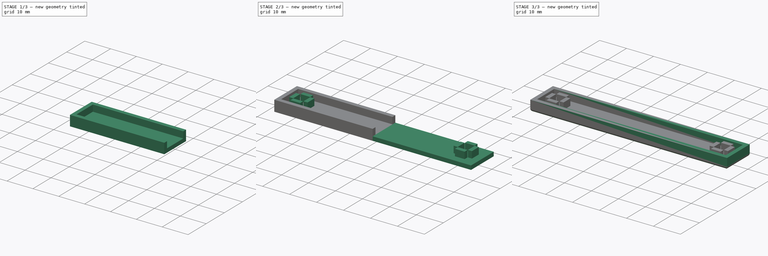
[diagram: build sequence overview — one tinted view per stage of 3, left to right]
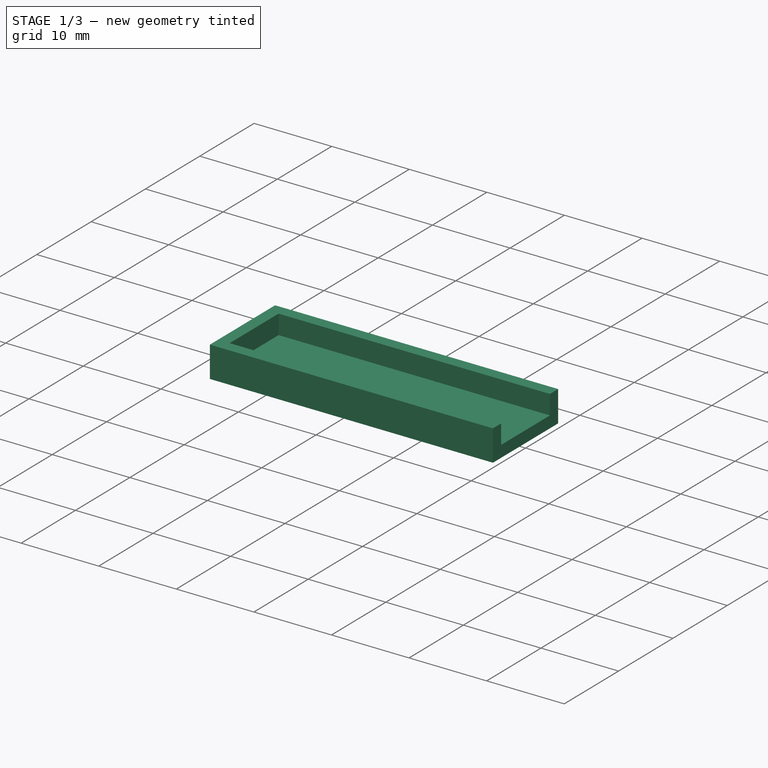
[diagram: stage 1 of 3 — iso view after this stage's code; geometry added in this stage tinted green]
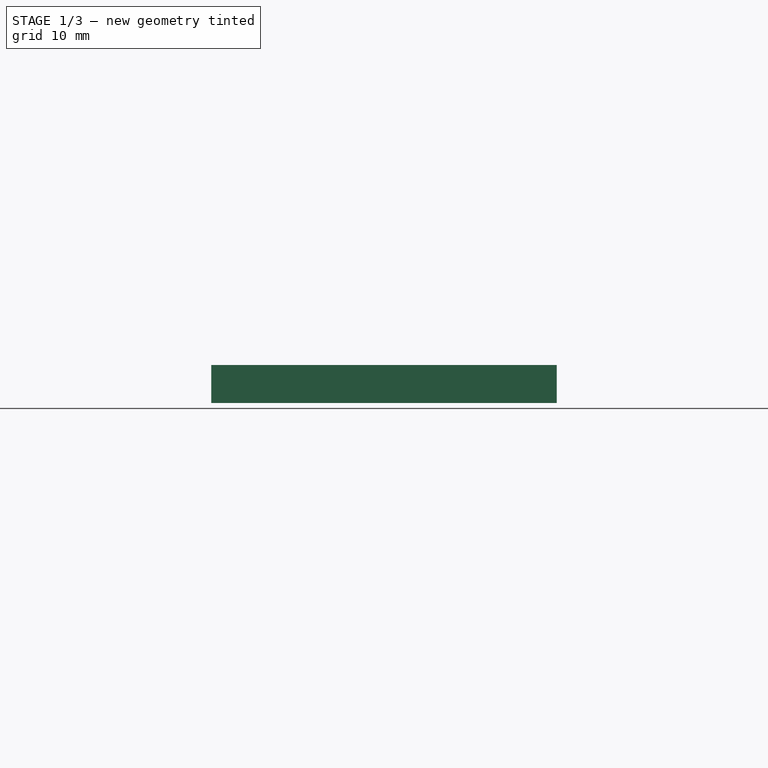
[diagram: stage 1 of 3 — front view after this stage's code; geometry added in this stage tinted green]
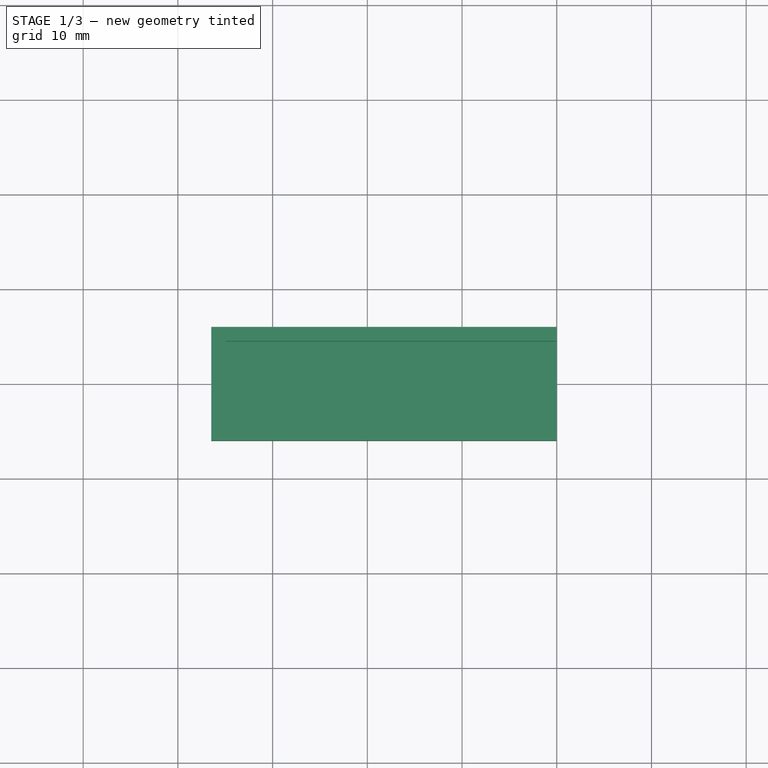
[diagram: stage 1 of 3 — top view after this stage's code; geometry added in this stage tinted green]
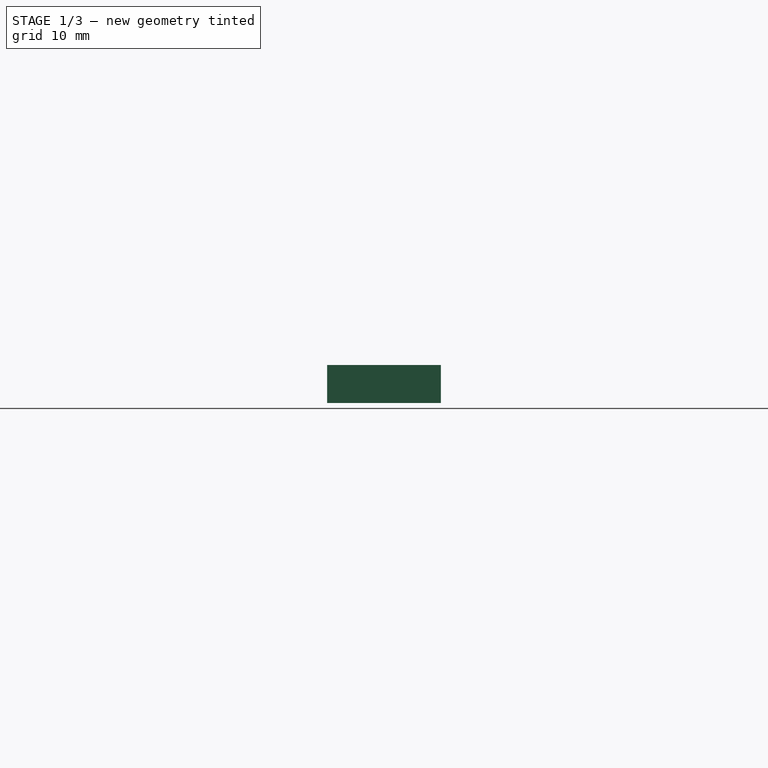
[diagram: stage 1 of 3 — right view after this stage's code; geometry added in this stage tinted green]
FCSTD DOCUMENT  (FreeCAD 0.19R24291 (Git))
Label: key-space
License: All rights reserved
LicenseURL: http://en.wikipedia.org/wiki/All_rights_reserved
objects: Sketcher::SketchObject×3, PartDesign::Pad×3, PartDesign::Mirrored×3, Spreadsheet::Sheet×1, PartDesign::Fillet×1, PartDesign::Body×1
note: 15 computed .brp shape members not serialized (recipe doc carries the construction recipe); baked Part::Feature solids carry a one-line shape summary decoded from their .brp

FEATURE [Spreadsheet::Sheet] Spreadsheet  label="Masse"
  cells = A2=Tastenabstand; B2(tab)==60.96mm; A3=Tastenknuppel; B3(auf)==3.6mm; A4=Höhe Aufnahme; B4(aufh)==4mm; A5=Tastenbreite; B5(keyl)==12mm; A6=Tastenhöhe; B6(keyh)==4mm; A7=Wandstärke1; B7(w1)==1.5mm; A8=Wandstärke2; B8(w2)==1.5mm; A9=Tolleranz; B9(Tol)==0.1mm
FEATURE [Sketcher::SketchObject] Sketch
  FullyConstrained = true
  MapMode = 5
  Support = -> [XY_Plane]
  expr: Constraints[8] = Spreadsheet.keyl
  expr: Constraints[9] = (Spreadsheet.tab + Spreadsheet.keyl) / 2
  sketch-geometry (4):
    g0: LineSegment StartX=-36.48 StartY=6 StartZ=0 EndX=0 EndY=6 EndZ=0
    g1: LineSegment StartX=0 StartY=6 StartZ=0 EndX=0 EndY=-6 EndZ=0
    g2: LineSegment StartX=0 StartY=-6 StartZ=0 EndX=-36.48 EndY=-6 EndZ=0
    g3: LineSegment StartX=-36.48 StartY=-6 StartZ=0 EndX=-36.48 EndY=6 EndZ=0
  constraints (11):
    c: Coincident(g0,g1)
    c: Coincident(g1,g2)
    c: Coincident(g2,g3)
    c: Coincident(g3,g0)
    c: Horizontal(g0)
    c: Horizontal(g2)
    c: Vertical(g1)
    c: Vertical(g3)
    c: DistanceY(g3,g3) = 12
    c: DistanceX(g0,g0) = 36.48
    c: Symmetric(g1,g0,g-1)
FEATURE [PartDesign::Pad] Pad
  Direction = (1,1,1)
  Length = 1.5
  Length2 = 100
  Profile = -> Sketch
  Type = 0
  expr: Length = Spreadsheet.w2
FEATURE [Sketcher::SketchObject] Sketch001
  AttachmentOffset = pos=(0,0,1.5) rot=(0,0,1;0rad)
  FullyConstrained = true
  MapMode = 5
  Placement = pos=(0,0,1.5) rot=(0,0,1;0rad)
  Support = -> [XY_Plane]
  expr: Constraints[14] = Spreadsheet.w2
  expr: Constraints[15] = (Spreadsheet.tab + Spreadsheet.keyl) / 2
  expr: Constraints[12] = Spreadsheet.keyl
  expr: Constraints[13] = Spreadsheet.keyl - 2 * Spreadsheet.w2
  expr: .AttachmentOffset.Base.z = Spreadsheet.w2
  sketch-geometry (8):
    g0: LineSegment StartX=-36.48 StartY=6 StartZ=0 EndX=0 EndY=6 EndZ=0
    g1: LineSegment StartX=0 StartY=-6 StartZ=0 EndX=-36.48 EndY=-6 EndZ=0
    g2: LineSegment StartX=-36.48 StartY=-6 StartZ=0 EndX=-36.48 EndY=6 EndZ=0
    g3: LineSegment StartX=-34.98 StartY=4.5 StartZ=0 EndX=0 EndY=4.5 EndZ=0
    g4: LineSegment StartX=0 StartY=-4.5 StartZ=0 EndX=-34.98 EndY=-4.5 EndZ=0
    g5: LineSegment StartX=-34.98 StartY=-4.5 StartZ=0 EndX=-34.98 EndY=4.5 EndZ=0
    g6: LineSegment StartX=0 StartY=4.5 StartZ=0 EndX=0 EndY=6 EndZ=0
    g7: LineSegment StartX=0 StartY=-6 StartZ=0 EndX=0 EndY=-4.5 EndZ=0
  constraints (22):
    c: Coincident(g1,g2)
    c: Coincident(g2,g0)
    c: Horizontal(g0)
    c: Horizontal(g1)
    c: Vertical(g2)
    c: Coincident(g4,g5)
    c: Coincident(g5,g3)
    c: Horizontal(g3)
    c: Horizontal(g4)
    c: Vertical(g5)
    c: Symmetric(g1,g0,g-1)
    c: Symmetric(g4,g3,g-1)
    c: DistanceY(g2,g2) = 12
    c: DistanceY(g5,g5) = 9
    c: DistanceX(g0,g3) = 1.5
    c: DistanceX(g0,g0) = 36.48
    c: Coincident(g6,g3)
    c: Coincident(g6,g0)
    c: Vertical(g6)
    c: Coincident(g7,g1)
    c: Coincident(g7,g4)
    c: PointOnObject(g4,g-2)
FEATURE [PartDesign::Pad] Pad001
  BaseFeature = -> Pad
  Direction = (1,1,1)
  Length = 2.5
  Length2 = 100
  Profile = -> Sketch001
  Refine = true
  Type = 0
  expr: Length = Spreadsheet.keyh - Spreadsheet.w2
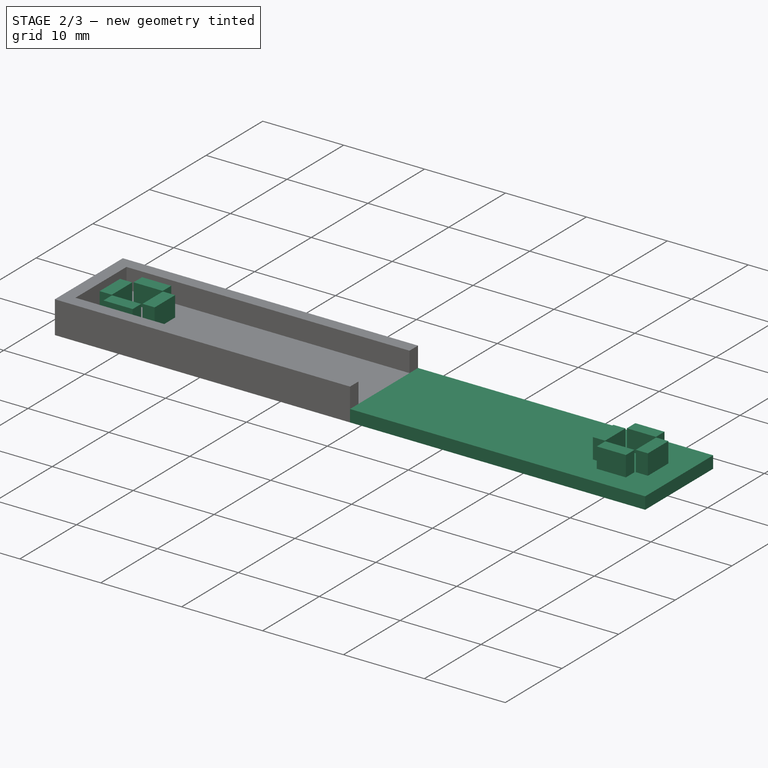
[diagram: stage 2 of 3 — iso view after this stage's code; geometry added in this stage tinted green]
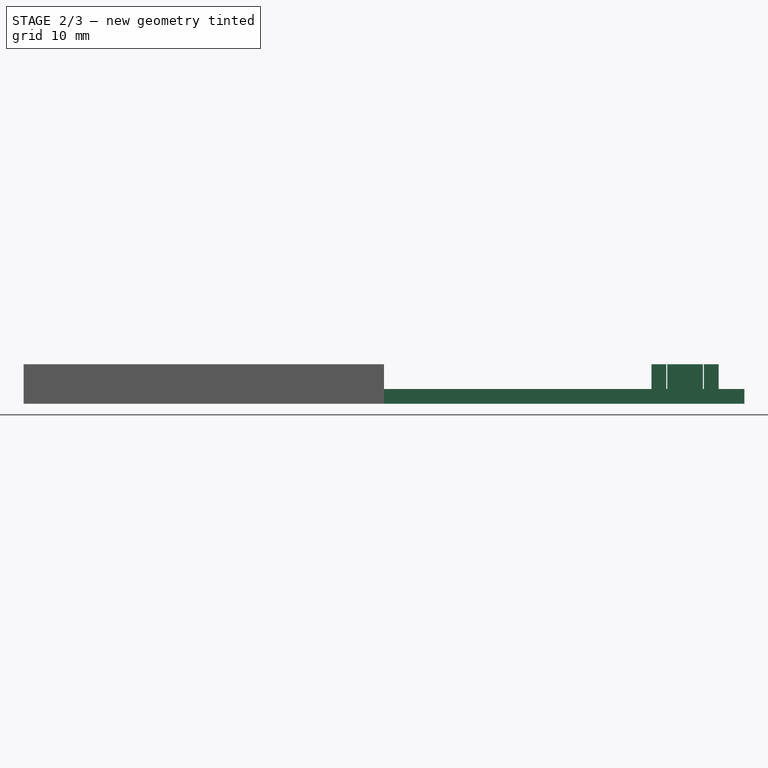
[diagram: stage 2 of 3 — front view after this stage's code; geometry added in this stage tinted green]
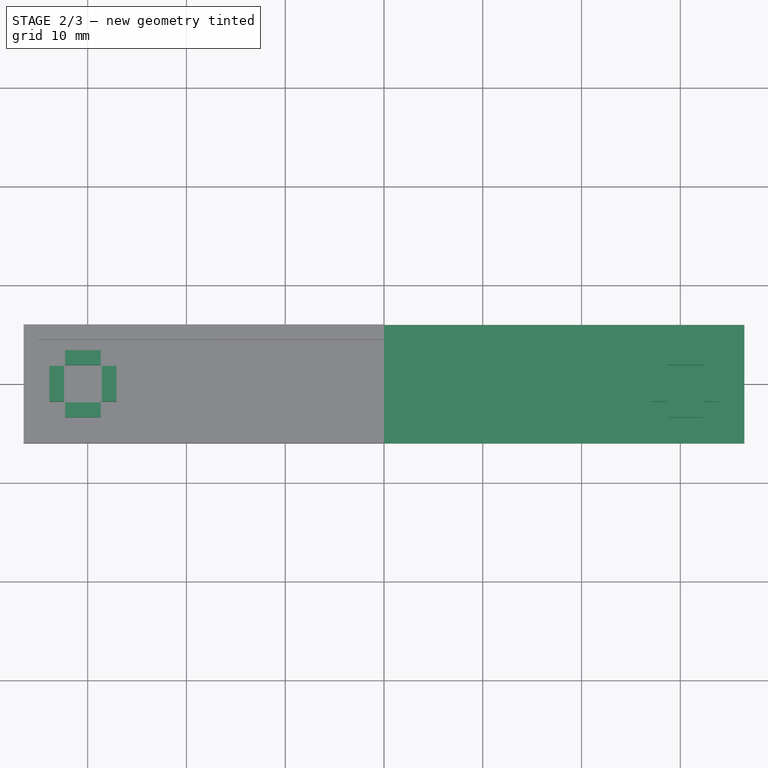
[diagram: stage 2 of 3 — top view after this stage's code; geometry added in this stage tinted green]
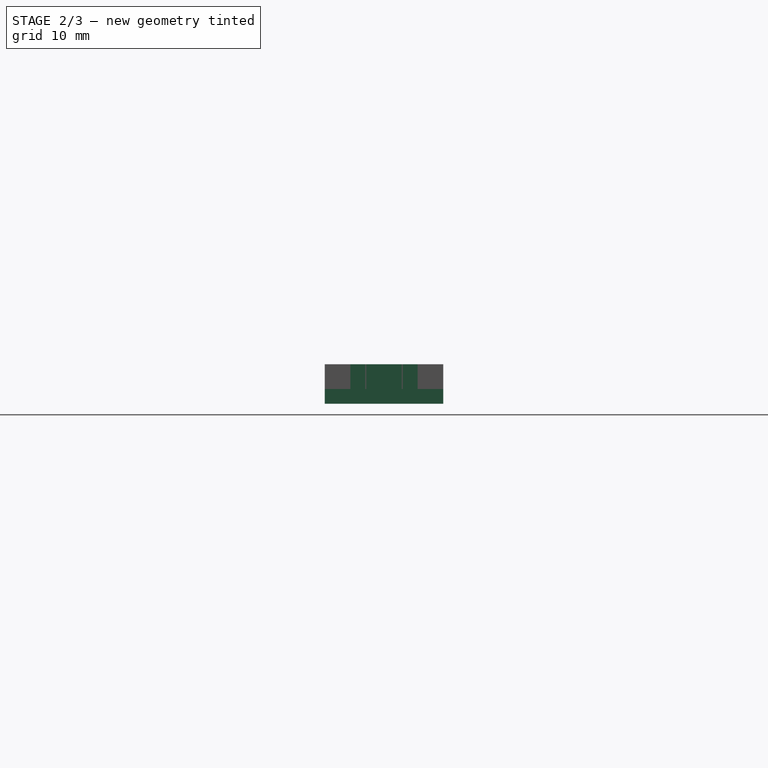
[diagram: stage 2 of 3 — right view after this stage's code; geometry added in this stage tinted green]
FEATURE [Sketcher::SketchObject] Sketch002
  FullyConstrained = true
  MapMode = 5
  Support = -> [XY_Plane]
  expr: Constraints[44] = (Spreadsheet.tab - Spreadsheet.auf) / 2
  expr: Constraints[43] = Spreadsheet.w1
  expr: Constraints[42] = Spreadsheet.auf
  expr: Constraints[41] = Spreadsheet.Tol
  expr: Constraints[39] = Spreadsheet.auf + 2 * Spreadsheet.Tol
  expr: Constraints[38] = Spreadsheet.auf + 2 * Spreadsheet.Tol
  sketch-geometry (16):
    g0: LineSegment StartX=-32.28 StartY=3.4 StartZ=0 EndX=-28.68 EndY=3.4 EndZ=0
    g1: LineSegment StartX=-28.68 StartY=3.4 StartZ=0 EndX=-28.68 EndY=1.9 EndZ=0
    g2: LineSegment StartX=-28.68 StartY=1.9 StartZ=0 EndX=-32.28 EndY=1.9 EndZ=0
    g3: LineSegment StartX=-32.28 StartY=1.9 StartZ=0 EndX=-32.28 EndY=3.4 EndZ=0
    g4: LineSegment StartX=-32.28 StartY=-1.9 StartZ=0 EndX=-28.68 EndY=-1.9 EndZ=0
    g5: LineSegment StartX=-28.68 StartY=-1.9 StartZ=0 EndX=-28.68 EndY=-3.4 EndZ=0
    g6: LineSegment StartX=-28.68 StartY=-3.4 StartZ=0 EndX=-32.28 EndY=-3.4 EndZ=0
    g7: LineSegment StartX=-32.28 StartY=-3.4 StartZ=0 EndX=-32.28 EndY=-1.9 EndZ=0
    g8: LineSegment StartX=-33.88 StartY=1.8 StartZ=0 EndX=-32.38 EndY=1.8 EndZ=0
    g9: LineSegment StartX=-32.38 StartY=1.8 StartZ=0 EndX=-32.38 EndY=-1.8 EndZ=0
    g10: LineSegment StartX=-32.38 StartY=-1.8 StartZ=0 EndX=-33.88 EndY=-1.8 EndZ=0
    g11: LineSegment StartX=-33.88 StartY=-1.8 StartZ=0 EndX=-33.88 EndY=1.8 EndZ=0
    g12: LineSegment StartX=-28.58 StartY=1.8 StartZ=0 EndX=-27.08 EndY=1.8 EndZ=0
    g13: LineSegment StartX=-27.08 StartY=1.8 StartZ=0 EndX=-27.08 EndY=-1.8 EndZ=0
    g14: LineSegment StartX=-27.08 StartY=-1.8 StartZ=0 EndX=-28.58 EndY=-1.8 EndZ=0
    g15: LineSegment StartX=-28.58 StartY=-1.8 StartZ=0 EndX=-28.58 EndY=1.8 EndZ=0
  constraints (45):
    c: Coincident(g0,g1)
    c: Coincident(g1,g2)
    c: Coincident(g2,g3)
    c: Coincident(g3,g0)
    c: Horizontal(g0)
    c: Horizontal(g2)
    c: Vertical(g1)
    c: Vertical(g3)
    c: Coincident(g4,g5)
    c: Coincident(g5,g6)
    c: Coincident(g6,g7)
    c: Coincident(g7,g4)
    c: Horizontal(g4)
    c: Horizontal(g6)
    c: Vertical(g5)
    c: Vertical(g7)
    c: Coincident(g8,g9)
    c: Coincident(g9,g10)
    c: Coincident(g10,g11)
    c: Coincident(g11,g8)
    c: Horizontal(g8)
    c: Horizontal(g10)
    c: Vertical(g9)
    c: Coincident(g12,g13)
    c: Coincident(g13,g14)
    c: Coincident(g14,g15)
    c: Coincident(g15,g12)
    c: Horizontal(g12)
    c: Horizontal(g14)
    c: Vertical(g15)
    c: Equal(g14,g7)
    c: Equal(g7,g8)
    c: Equal(g8,g1)
    c: Equal(g15,g4)
    c: Equal(g4,g9)
    c: Equal(g9,g2)
    c: Symmetric(g10,g8,g-1)
    c: Symmetric(g13,g12,g-1)
    c: DistanceX(g8,g12) = 3.8
    c: DistanceY(g4,g1) = 3.8
    c: Symmetric(g4,g1,g-1)
    c: DistanceX(g8,g0) = 0.1
    c: DistanceX(g0,g0) = 3.6
    c: DistanceY(g1,g0) = 1.5
    c: DistanceX(g4,g-1) = 28.68
FEATURE [PartDesign::Pad] Pad002
  BaseFeature = -> Pad001
  Direction = (1,1,1)
  Length = 4
  Length2 = 100
  Profile = -> Sketch002
  Refine = true
  Type = 0
  expr: Length = Spreadsheet.aufh
FEATURE [PartDesign::Mirrored] Mirrored
  BaseFeature = -> Pad002
  MirrorPlane = -> Sketch [V_Axis]
  Originals = -> [Pad]
FEATURE [PartDesign::Mirrored] Mirrored001
  BaseFeature = -> Mirrored
  MirrorPlane = -> Sketch002 [V_Axis]
  Originals = -> [Pad002]
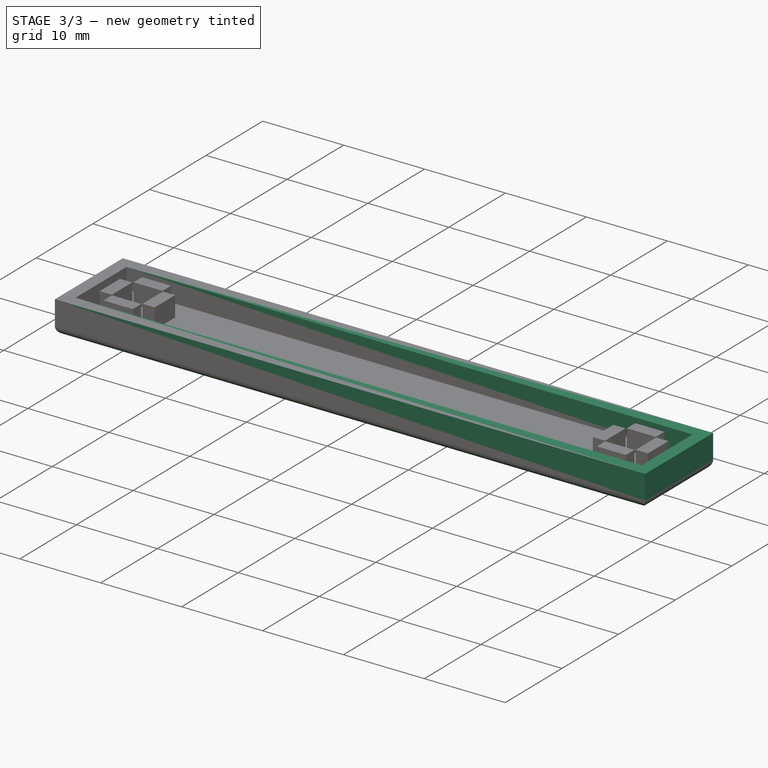
[diagram: stage 3 of 3 — iso view after this stage's code; geometry added in this stage tinted green]
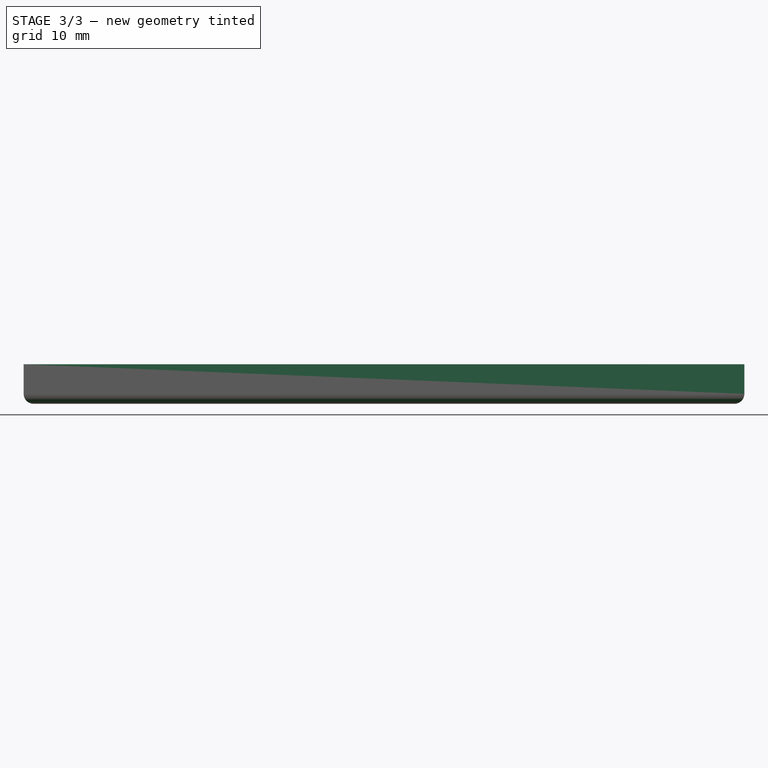
[diagram: stage 3 of 3 — front view after this stage's code; geometry added in this stage tinted green]
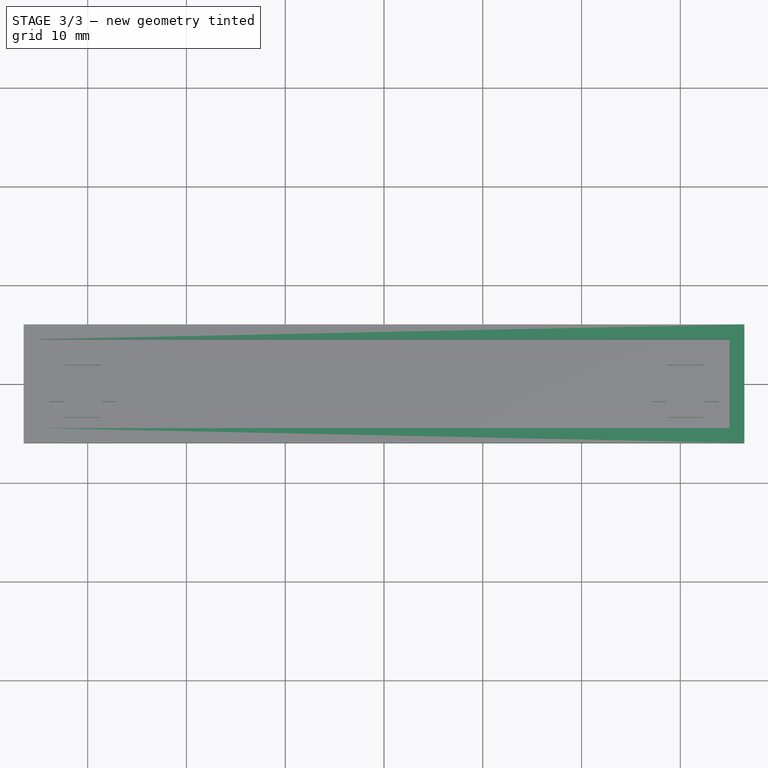
[diagram: stage 3 of 3 — top view after this stage's code; geometry added in this stage tinted green]
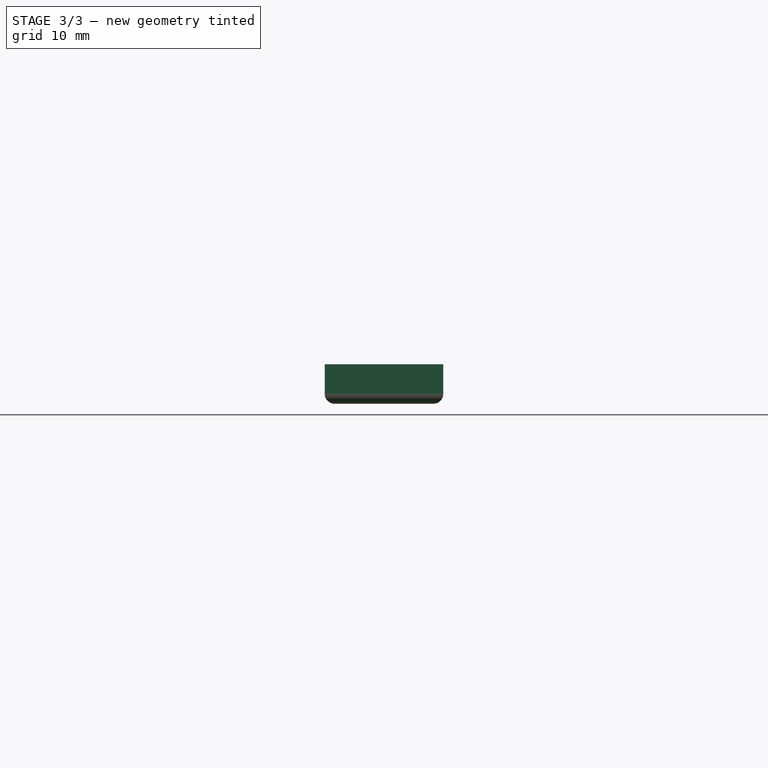
[diagram: stage 3 of 3 — right view after this stage's code; geometry added in this stage tinted green]
FEATURE [PartDesign::Mirrored] Mirrored002
  BaseFeature = -> Mirrored001
  MirrorPlane = -> Sketch001 [V_Axis]
  Originals = -> [Pad001]
  Refine = true
FEATURE [PartDesign::Fillet] Fillet
  Base = -> Mirrored002 [Edge120,Edge116,Edge4,Edge119]
  BaseFeature = -> Mirrored002
  Radius = 1
  SupportTransform = false
FEATURE [PartDesign::Body] Body
  Group = -> [Sketch,Pad,Sketch001,Pad001,Sketch002,Pad002,Mirrored,Mirrored001,Mirrored002,Fillet]
  Origin = -> Origin
  Tip = -> Fillet
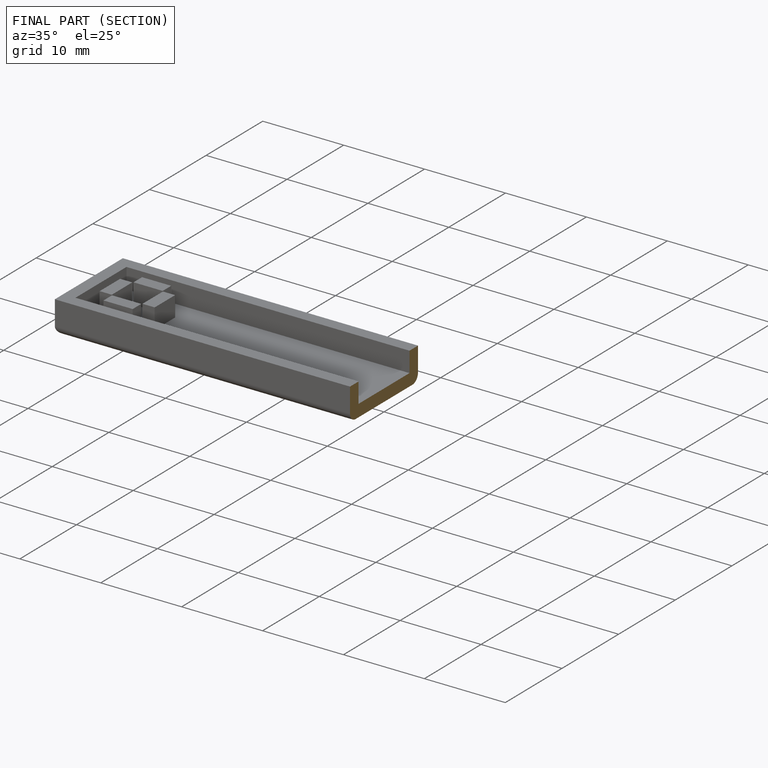
[diagram: finished part — half-section view (interior)]
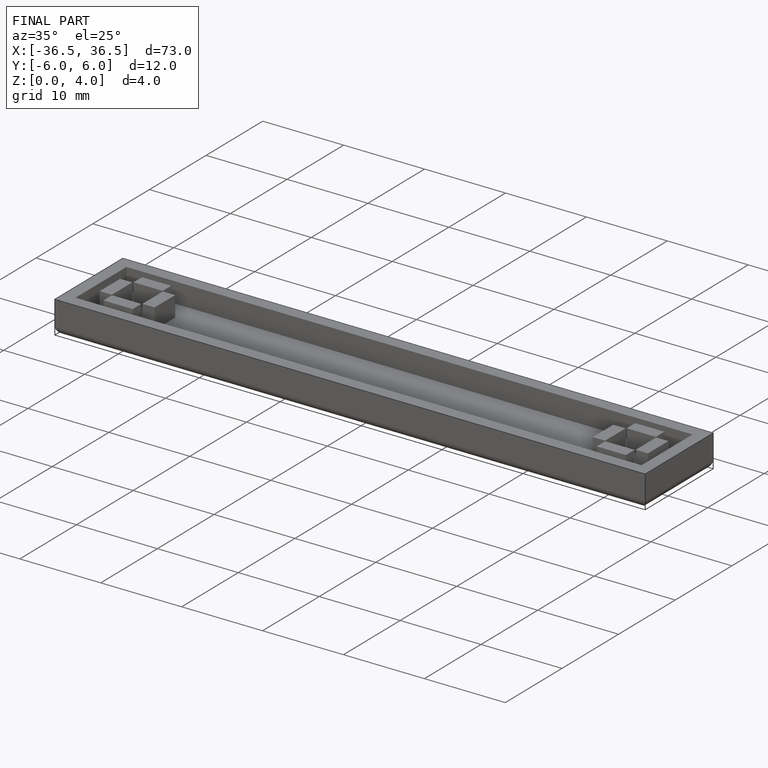
[diagram: finished part — iso view with bounding-box wireframe]
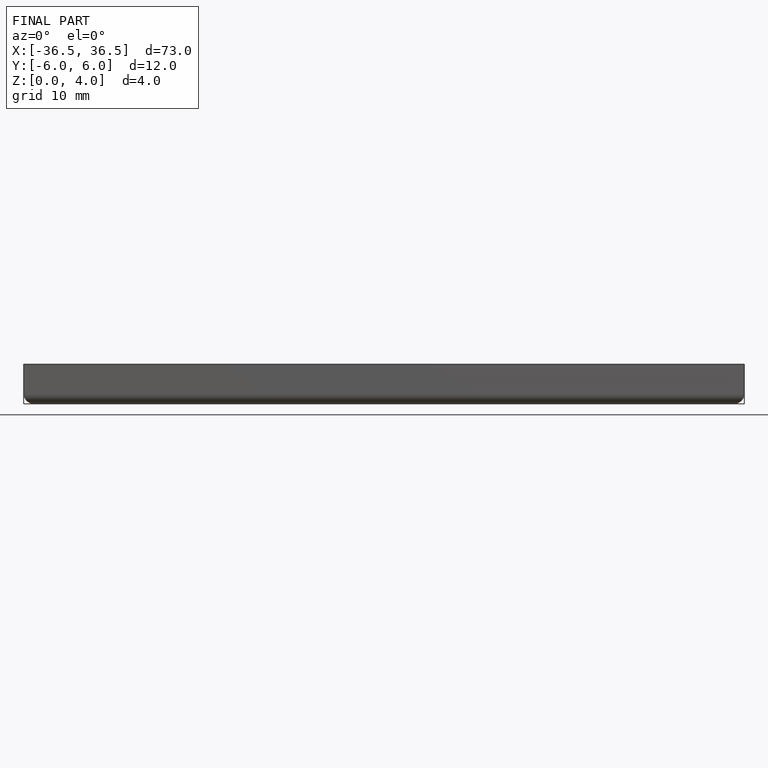
[diagram: finished part — front view with bounding-box wireframe]
